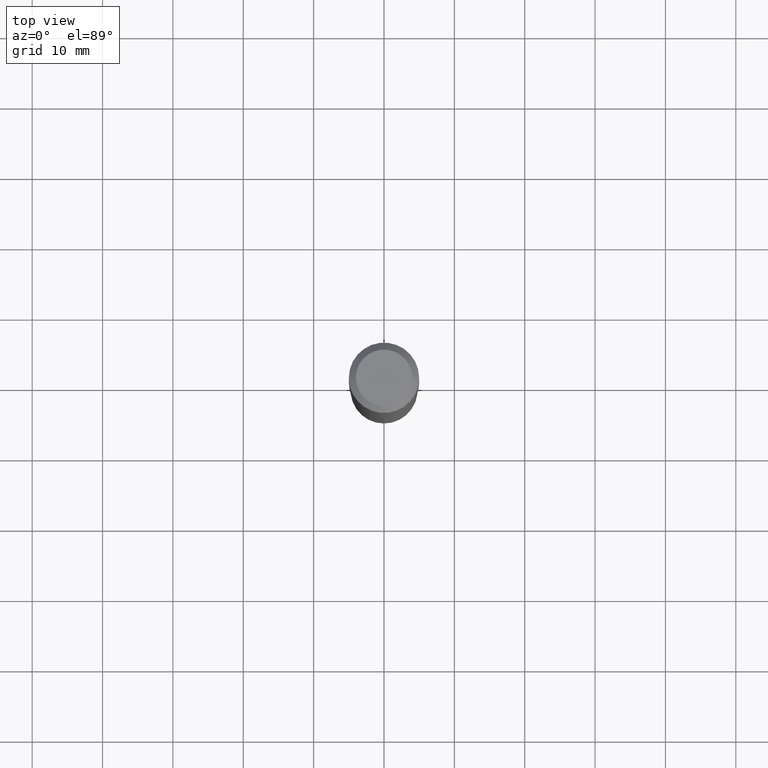
[diagram: clean part render]
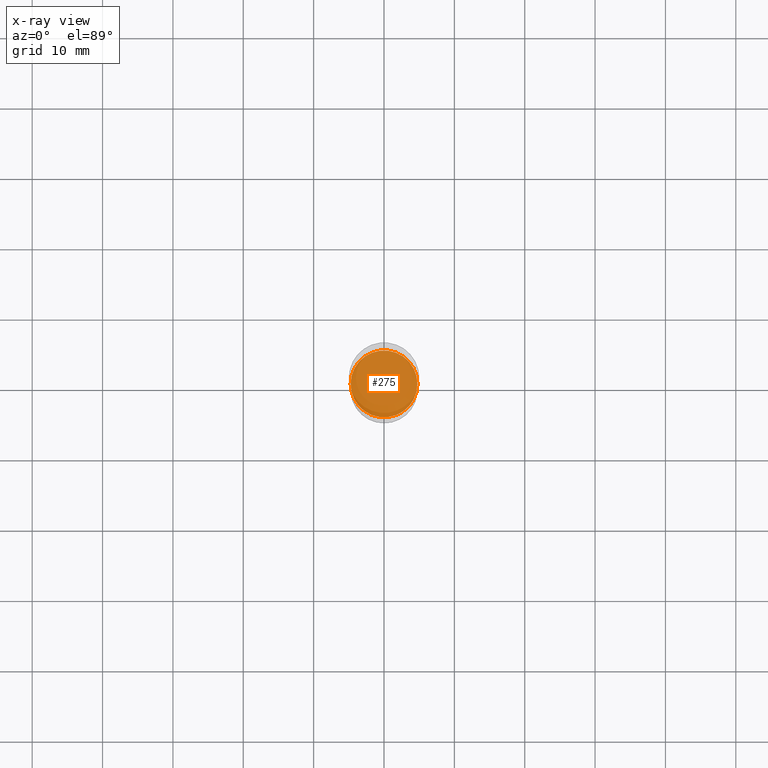
[diagram: x-ray — body ghosted, one internal face saturated and labeled with its STEP entity id]
A machine part, top view, then the same camera in x-ray: the body is ghosted and one INTERNAL B-rep face — a face not visible from any outside direction — is saturated and labeled: STEP entity #275.
In plain terms, the highlighted planar face has unit normal (-0, 0, 1).
Its self-contained STEP definition (entity closure, byte-faithful):
#21 = CARTESIAN_POINT ( 'NONE',  ( -0.1869999999999999996, -5.749360012128399581E-15, -2.027999999999999581 ) ) ;
#33 = EDGE_CURVE ( 'NONE', #82, #442, #251, .T. ) ;
#37 = AXIS2_PLACEMENT_3D ( 'NONE', #99, #252, #438 ) ;
#48 = ORIENTED_EDGE ( 'NONE', *, *, #181, .F. ) ;
#68 = CIRCLE ( 'NONE', #257, 0.1869999999999999996 ) ;
#82 = VERTEX_POINT ( 'NONE', #21 ) ;
#99 = CARTESIAN_POINT ( 'NONE',  ( 4.959410738943456624E-29, -7.080724155173898521E-15, -2.027999999999999581 ) ) ;
#112 = DIRECTION ( 'NONE',  ( -2.445468806185136597E-29, 3.491481338843145583E-15, 1.000000000000000000 ) ) ;
#155 = AXIS2_PLACEMENT_3D ( 'NONE', #303, #161, #465 ) ;
#161 = DIRECTION ( 'NONE',  ( -2.438088387897960049E-29, 3.491481338843145188E-15, 1.000000000000000000 ) ) ;
#181 = EDGE_CURVE ( 'NONE', #442, #82, #68, .T. ) ;
#196 = FACE_OUTER_BOUND ( 'NONE', #466, .T. ) ;
#201 = CARTESIAN_POINT ( 'NONE',  ( 0.1869999999999999996, -8.386538175901229733E-15, -2.027999999999999581 ) ) ;
#251 = CIRCLE ( 'NONE', #37, 0.1869999999999999996 ) ;
#252 = DIRECTION ( 'NONE',  ( -2.445468806185136597E-29, 3.491481338843145583E-15, 1.000000000000000000 ) ) ;
#255 = DIRECTION ( 'NONE',  ( 1.000000000000000000, -6.982962677686265133E-15, 0.000000000000000000 ) ) ;
#257 = AXIS2_PLACEMENT_3D ( 'NONE', #335, #112, #255 ) ;
#275 = ADVANCED_FACE ( 'NONE', ( #196 ), #416, .F. ) ;
#303 = CARTESIAN_POINT ( 'NONE',  ( 2.890591265467325299E-29, -1.004339139108359101E-14, -2.027999999999999581 ) ) ;
#335 = CARTESIAN_POINT ( 'NONE',  ( 4.959410738943456624E-29, -7.080724155173898521E-15, -2.027999999999999581 ) ) ;
#383 = ORIENTED_EDGE ( 'NONE', *, *, #33, .F. ) ;
#416 = PLANE ( 'NONE',  #155 ) ;
#438 = DIRECTION ( 'NONE',  ( 1.000000000000000000, -6.982962677686265133E-15, 0.000000000000000000 ) ) ;
#442 = VERTEX_POINT ( 'NONE', #201 ) ;
#465 = DIRECTION ( 'NONE',  ( 1.000000000000000000, -6.982962677686265922E-15, 4.876176775795935793E-29 ) ) ;
#466 = EDGE_LOOP ( 'NONE', ( #48, #383 ) ) ;